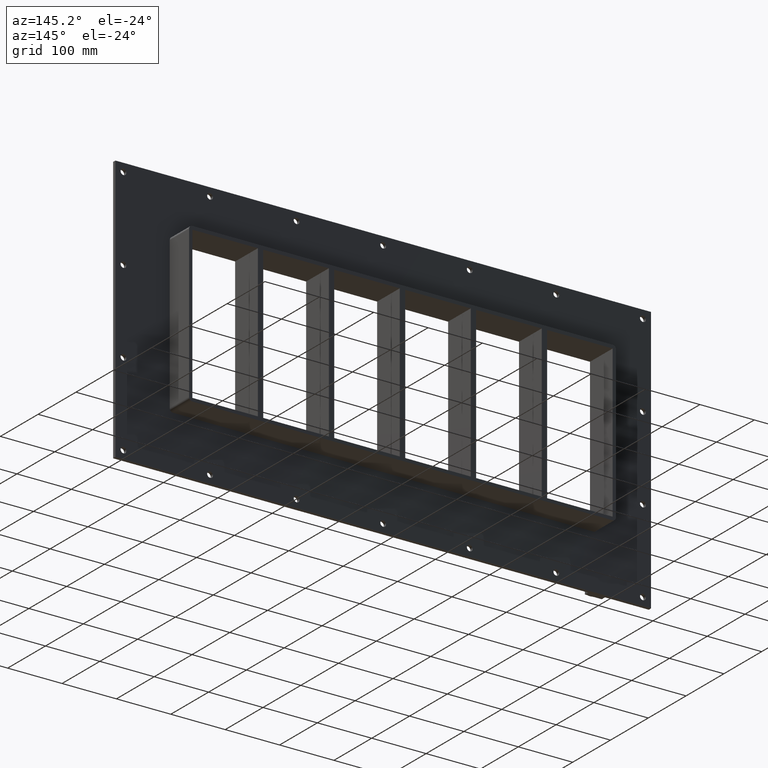
[diagram: clean part render]
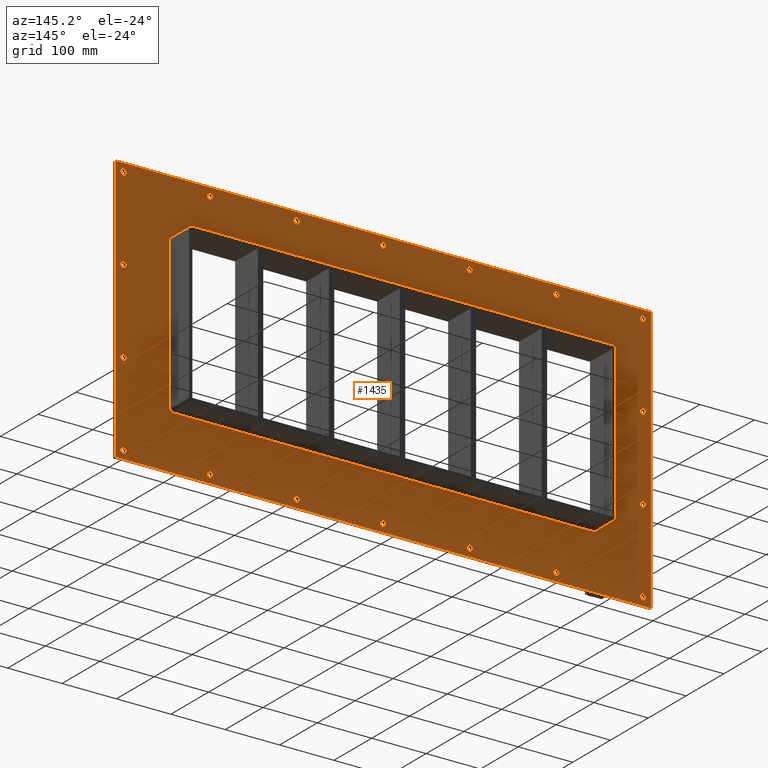
[diagram: same view with one face highlighted and labeled with its STEP entity id]
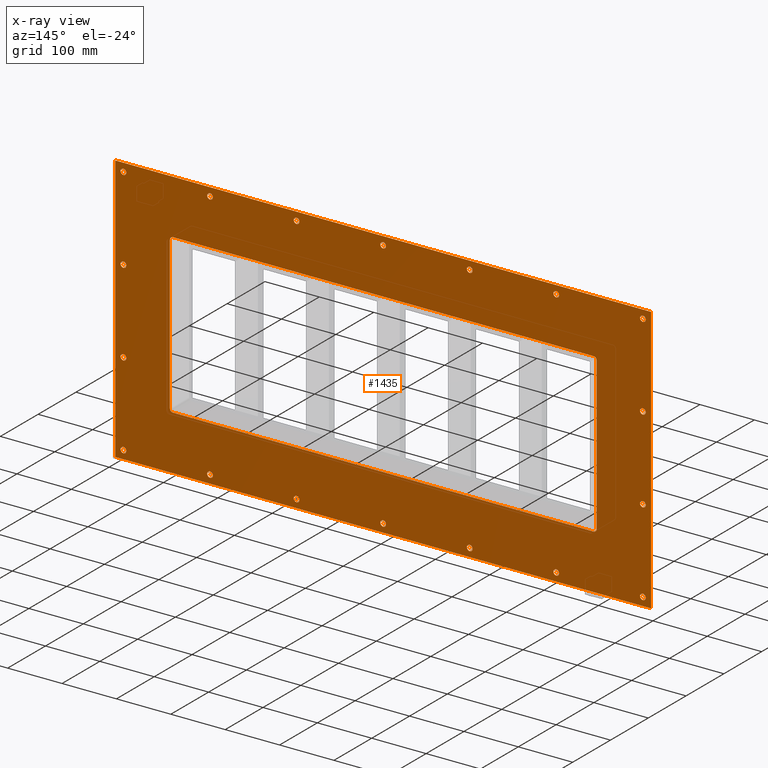
[diagram: x-ray of the same camera — body ghosted, the highlighted face saturated]
A machine part, auxiliary view. The second image highlights one B-rep face of the part: STEP entity #1435.
The next image is the same camera in x-ray: the body ghosted, the highlighted face saturated — about 0% of this face is hidden behind the body in this view.
In plain terms, the highlighted planar face has unit normal (0, 1, 0).
Its self-contained STEP definition (entity closure, byte-faithful):
#73=CARTESIAN_POINT('',(-482.75000000000034,5.999999999999943,-229.99999999999994));
#74=VERTEX_POINT('',#73);
#75=CARTESIAN_POINT('',(-477.50000000000034,5.999999999999943,-229.99999999999994));
#76=DIRECTION('',(0.0,-1.0,0.0));
#77=DIRECTION('',(1.0,0.0,0.0));
#78=AXIS2_PLACEMENT_3D('',#75,#76,#77);
#79=CIRCLE('',#78,5.25);
#80=EDGE_CURVE('',#74,#74,#79,.T.);
#101=CARTESIAN_POINT('',(472.44999999999959,5.999999999999943,-76.699999999999903));
#102=VERTEX_POINT('',#101);
#103=CARTESIAN_POINT('',(477.69999999999959,5.999999999999943,-76.699999999999903));
#104=DIRECTION('',(0.0,-1.0,0.0));
#105=DIRECTION('',(1.0,0.0,0.0));
#106=AXIS2_PLACEMENT_3D('',#103,#104,#105);
#107=CIRCLE('',#106,5.25);
#108=EDGE_CURVE('',#102,#102,#107,.T.);
#129=CARTESIAN_POINT('',(-482.75000000000034,5.999999999999943,-76.699999999999903));
#130=VERTEX_POINT('',#129);
#131=CARTESIAN_POINT('',(-477.50000000000034,5.999999999999943,-76.699999999999903));
#132=DIRECTION('',(0.0,-1.0,0.0));
#133=DIRECTION('',(1.0,0.0,0.0));
#134=AXIS2_PLACEMENT_3D('',#131,#132,#133);
#135=CIRCLE('',#134,5.25);
#136=EDGE_CURVE('',#130,#130,#135,.T.);
#157=CARTESIAN_POINT('',(472.44999999999959,5.999999999999943,76.600000000000094));
#158=VERTEX_POINT('',#157);
#159=CARTESIAN_POINT('',(477.69999999999959,5.999999999999943,76.600000000000094));
#160=DIRECTION('',(0.0,-1.0,0.0));
#161=DIRECTION('',(1.0,0.0,0.0));
#162=AXIS2_PLACEMENT_3D('',#159,#160,#161);
#163=CIRCLE('',#162,5.25);
#164=EDGE_CURVE('',#158,#158,#163,.T.);
#185=CARTESIAN_POINT('',(-482.75000000000034,5.999999999999943,76.600000000000094));
#186=VERTEX_POINT('',#185);
#187=CARTESIAN_POINT('',(-477.50000000000034,5.999999999999943,76.600000000000094));
#188=DIRECTION('',(0.0,-1.0,0.0));
#189=DIRECTION('',(1.0,0.0,0.0));
#190=AXIS2_PLACEMENT_3D('',#187,#188,#189);
#191=CIRCLE('',#190,5.25);
#192=EDGE_CURVE('',#186,#186,#191,.T.);
#213=CARTESIAN_POINT('',(-323.5500000000003,5.999999999999943,229.90000000000009));
#214=VERTEX_POINT('',#213);
#215=CARTESIAN_POINT('',(-318.30000000000035,5.999999999999943,229.90000000000009));
#216=DIRECTION('',(0.0,-1.0,0.0));
#217=DIRECTION('',(1.0,0.0,0.0));
#218=AXIS2_PLACEMENT_3D('',#215,#216,#217);
#219=CIRCLE('',#218,5.25);
#220=EDGE_CURVE('',#214,#214,#219,.T.);
#241=CARTESIAN_POINT('',(-323.5500000000003,5.999999999999943,-230.0));
#242=VERTEX_POINT('',#241);
#243=CARTESIAN_POINT('',(-318.30000000000035,5.999999999999943,-230.0));
#244=DIRECTION('',(0.0,-1.0,0.0));
#245=DIRECTION('',(1.0,0.0,0.0));
#246=AXIS2_PLACEMENT_3D('',#243,#244,#245);
#247=CIRCLE('',#246,5.25);
#248=EDGE_CURVE('',#242,#242,#247,.T.);
#269=CARTESIAN_POINT('',(-164.35000000000036,5.999999999999943,229.90000000000009));
#270=VERTEX_POINT('',#269);
#271=CARTESIAN_POINT('',(-159.10000000000036,5.999999999999943,229.90000000000009));
#272=DIRECTION('',(0.0,-1.0,0.0));
#273=DIRECTION('',(1.0,0.0,0.0));
#274=AXIS2_PLACEMENT_3D('',#271,#272,#273);
#275=CIRCLE('',#274,5.25);
#276=EDGE_CURVE('',#270,#270,#275,.T.);
#297=CARTESIAN_POINT('',(-164.35000000000036,5.999999999999943,-230.0));
#298=VERTEX_POINT('',#297);
#299=CARTESIAN_POINT('',(-159.10000000000036,5.999999999999943,-230.0));
#300=DIRECTION('',(0.0,-1.0,0.0));
#301=DIRECTION('',(1.0,0.0,0.0));
#302=AXIS2_PLACEMENT_3D('',#299,#300,#301);
#303=CIRCLE('',#302,5.25);
#304=EDGE_CURVE('',#298,#298,#303,.T.);
#325=CARTESIAN_POINT('',(-5.150000000000343,5.999999999999943,229.90000000000009));
#326=VERTEX_POINT('',#325);
#327=CARTESIAN_POINT('',(0.099999999999643,5.999999999999943,229.90000000000009));
#328=DIRECTION('',(0.0,-1.0,0.0));
#329=DIRECTION('',(1.0,0.0,0.0));
#330=AXIS2_PLACEMENT_3D('',#327,#328,#329);
#331=CIRCLE('',#330,5.25);
#332=EDGE_CURVE('',#326,#326,#331,.T.);
#353=CARTESIAN_POINT('',(-5.150000000000343,5.999999999999943,-230.0));
#354=VERTEX_POINT('',#353);
#355=CARTESIAN_POINT('',(0.099999999999643,5.999999999999943,-230.0));
#356=DIRECTION('',(0.0,-1.0,0.0));
#357=DIRECTION('',(1.0,0.0,0.0));
#358=AXIS2_PLACEMENT_3D('',#355,#356,#357);
#359=CIRCLE('',#358,5.25);
#360=EDGE_CURVE('',#354,#354,#359,.T.);
#381=CARTESIAN_POINT('',(154.04999999999961,5.999999999999943,229.90000000000009));
#382=VERTEX_POINT('',#381);
#383=CARTESIAN_POINT('',(159.29999999999959,5.999999999999943,229.90000000000009));
#384=DIRECTION('',(0.0,-1.0,0.0));
#385=DIRECTION('',(1.0,0.0,0.0));
#386=AXIS2_PLACEMENT_3D('',#383,#384,#385);
#387=CIRCLE('',#386,5.25);
#388=EDGE_CURVE('',#382,#382,#387,.T.);
#409=CARTESIAN_POINT('',(154.04999999999961,5.999999999999943,-230.0));
#410=VERTEX_POINT('',#409);
#411=CARTESIAN_POINT('',(159.29999999999959,5.999999999999943,-230.0));
#412=DIRECTION('',(0.0,-1.0,0.0));
#413=DIRECTION('',(1.0,0.0,0.0));
#414=AXIS2_PLACEMENT_3D('',#411,#412,#413);
#415=CIRCLE('',#414,5.25);
#416=EDGE_CURVE('',#410,#410,#415,.T.);
#437=CARTESIAN_POINT('',(313.2499999999996,5.999999999999943,229.90000000000009));
#438=VERTEX_POINT('',#437);
#439=CARTESIAN_POINT('',(318.4999999999996,5.999999999999943,229.90000000000009));
#440=DIRECTION('',(0.0,-1.0,0.0));
#441=DIRECTION('',(1.0,0.0,0.0));
#442=AXIS2_PLACEMENT_3D('',#439,#440,#441);
#443=CIRCLE('',#442,5.25);
#444=EDGE_CURVE('',#438,#438,#443,.T.);
#465=CARTESIAN_POINT('',(313.2499999999996,5.999999999999943,-230.0));
#466=VERTEX_POINT('',#465);
#467=CARTESIAN_POINT('',(318.4999999999996,5.999999999999943,-230.0));
#468=DIRECTION('',(0.0,-1.0,0.0));
#469=DIRECTION('',(1.0,0.0,0.0));
#470=AXIS2_PLACEMENT_3D('',#467,#468,#469);
#471=CIRCLE('',#470,5.25);
#472=EDGE_CURVE('',#466,#466,#471,.T.);
#493=CARTESIAN_POINT('',(472.44999999999959,5.999999999999943,-230.0));
#494=VERTEX_POINT('',#493);
#495=CARTESIAN_POINT('',(477.69999999999959,5.999999999999943,-230.0));
#496=DIRECTION('',(0.0,-1.0,0.0));
#497=DIRECTION('',(1.0,0.0,0.0));
#498=AXIS2_PLACEMENT_3D('',#495,#496,#497);
#499=CIRCLE('',#498,5.25);
#500=EDGE_CURVE('',#494,#494,#499,.T.);
#521=CARTESIAN_POINT('',(-482.75000000000034,5.999999999999943,229.90000000000009));
#522=VERTEX_POINT('',#521);
#523=CARTESIAN_POINT('',(-477.50000000000034,5.999999999999943,229.90000000000009));
#524=DIRECTION('',(0.0,-1.0,0.0));
#525=DIRECTION('',(1.0,0.0,0.0));
#526=AXIS2_PLACEMENT_3D('',#523,#524,#525);
#527=CIRCLE('',#526,5.25);
#528=EDGE_CURVE('',#522,#522,#527,.T.);
#549=CARTESIAN_POINT('',(472.44999999999959,5.999999999999943,229.90000000000009));
#550=VERTEX_POINT('',#549);
#551=CARTESIAN_POINT('',(477.69999999999959,5.999999999999943,229.90000000000009));
#552=DIRECTION('',(0.0,-1.0,0.0));
#553=DIRECTION('',(1.0,0.0,0.0));
#554=AXIS2_PLACEMENT_3D('',#551,#552,#553);
#555=CIRCLE('',#554,5.25);
#556=EDGE_CURVE('',#550,#550,#555,.T.);
#1272=CARTESIAN_POINT('',(0.0,6.000000000000001,0.0));
#1273=DIRECTION('',(0.0,1.0,0.0));
#1274=DIRECTION('',(0.0,0.0,1.0));
#1275=AXIS2_PLACEMENT_3D('',#1272,#1273,#1274);
#1276=PLANE('',#1275);
#1277=CARTESIAN_POINT('',(-492.50000000000023,6.000000000000001,245.0));
#1278=VERTEX_POINT('',#1277);
#1279=CARTESIAN_POINT('',(492.50000000000023,6.000000000000001,245.0));
#1280=VERTEX_POINT('',#1279);
#1281=CARTESIAN_POINT('',(-492.50000000000023,6.000000000000001,245.0));
#1282=DIRECTION('',(1.0,0.0,0.0));
#1283=VECTOR('',#1282,985.00000000000045);
#1284=LINE('',#1281,#1283);
#1285=EDGE_CURVE('',#1278,#1280,#1284,.T.);
#1286=ORIENTED_EDGE('',*,*,#1285,.T.);
#1287=CARTESIAN_POINT('',(492.50000000000023,6.000000000000001,-245.0));
#1288=VERTEX_POINT('',#1287);
#1289=CARTESIAN_POINT('',(492.50000000000023,6.000000000000001,245.0));
#1290=DIRECTION('',(0.0,0.0,-1.0));
#1291=VECTOR('',#1290,490.0);
#1292=LINE('',#1289,#1291);
#1293=EDGE_CURVE('',#1280,#1288,#1292,.T.);
#1294=ORIENTED_EDGE('',*,*,#1293,.T.);
#1295=CARTESIAN_POINT('',(-492.50000000000023,6.000000000000001,-245.0));
#1296=VERTEX_POINT('',#1295);
#1297=CARTESIAN_POINT('',(492.50000000000023,6.000000000000001,-245.0));
#1298=DIRECTION('',(-1.0,0.0,0.0));
#1299=VECTOR('',#1298,985.00000000000045);
#1300=LINE('',#1297,#1299);
#1301=EDGE_CURVE('',#1288,#1296,#1300,.T.);
#1302=ORIENTED_EDGE('',*,*,#1301,.T.);
#1303=CARTESIAN_POINT('',(-492.50000000000023,6.000000000000001,-245.0));
#1304=DIRECTION('',(0.0,0.0,1.0));
#1305=VECTOR('',#1304,490.0);
#1306=LINE('',#1303,#1305);
#1307=EDGE_CURVE('',#1296,#1278,#1306,.T.);
#1308=ORIENTED_EDGE('',*,*,#1307,.T.);
#1309=EDGE_LOOP('',(#1286,#1294,#1302,#1308));
#1310=FACE_OUTER_BOUND('',#1309,.T.);
#1311=ORIENTED_EDGE('',*,*,#80,.T.);
#1312=EDGE_LOOP('',(#1311));
#1313=FACE_BOUND('',#1312,.T.);
#1314=ORIENTED_EDGE('',*,*,#108,.T.);
#1315=EDGE_LOOP('',(#1314));
#1316=FACE_BOUND('',#1315,.T.);
#1317=ORIENTED_EDGE('',*,*,#136,.T.);
#1318=EDGE_LOOP('',(#1317));
#1319=FACE_BOUND('',#1318,.T.);
#1320=ORIENTED_EDGE('',*,*,#164,.T.);
#1321=EDGE_LOOP('',(#1320));
#1322=FACE_BOUND('',#1321,.T.);
#1323=ORIENTED_EDGE('',*,*,#192,.T.);
#1324=EDGE_LOOP('',(#1323));
#1325=FACE_BOUND('',#1324,.T.);
#1326=ORIENTED_EDGE('',*,*,#220,.T.);
#1327=EDGE_LOOP('',(#1326));
#1328=FACE_BOUND('',#1327,.T.);
#1329=ORIENTED_EDGE('',*,*,#248,.T.);
#1330=EDGE_LOOP('',(#1329));
#1331=FACE_BOUND('',#1330,.T.);
#1332=ORIENTED_EDGE('',*,*,#276,.T.);
#1333=EDGE_LOOP('',(#1332));
#1334=FACE_BOUND('',#1333,.T.);
#1335=ORIENTED_EDGE('',*,*,#304,.T.);
#1336=EDGE_LOOP('',(#1335));
#1337=FACE_BOUND('',#1336,.T.);
#1338=ORIENTED_EDGE('',*,*,#332,.T.);
#1339=EDGE_LOOP('',(#1338));
#1340=FACE_BOUND('',#1339,.T.);
#1341=ORIENTED_EDGE('',*,*,#360,.T.);
#1342=EDGE_LOOP('',(#1341));
#1343=FACE_BOUND('',#1342,.T.);
#1344=ORIENTED_EDGE('',*,*,#388,.T.);
#1345=EDGE_LOOP('',(#1344));
#1346=FACE_BOUND('',#1345,.T.);
#1347=ORIENTED_EDGE('',*,*,#416,.T.);
#1348=EDGE_LOOP('',(#1347));
#1349=FACE_BOUND('',#1348,.T.);
#1350=ORIENTED_EDGE('',*,*,#444,.T.);
#1351=EDGE_LOOP('',(#1350));
#1352=FACE_BOUND('',#1351,.T.);
#1353=ORIENTED_EDGE('',*,*,#472,.T.);
#1354=EDGE_LOOP('',(#1353));
#1355=FACE_BOUND('',#1354,.T.);
#1356=ORIENTED_EDGE('',*,*,#500,.T.);
#1357=EDGE_LOOP('',(#1356));
#1358=FACE_BOUND('',#1357,.T.);
#1359=ORIENTED_EDGE('',*,*,#528,.T.);
#1360=EDGE_LOOP('',(#1359));
#1361=FACE_BOUND('',#1360,.T.);
#1362=ORIENTED_EDGE('',*,*,#556,.T.);
#1363=EDGE_LOOP('',(#1362));
#1364=FACE_BOUND('',#1363,.T.);
#1365=CARTESIAN_POINT('',(-392.50000000000006,6.000000000000001,139.0));
#1366=VERTEX_POINT('',#1365);
#1367=CARTESIAN_POINT('',(-386.50000000000006,6.000000000000001,145.0));
#1368=VERTEX_POINT('',#1367);
#1369=CARTESIAN_POINT('',(-386.50000000000006,6.000000000000001,139.0));
#1370=DIRECTION('',(0.0,1.0,0.0));
#1371=DIRECTION('',(-0.707106781186543,0.0,0.707106781186552));
#1372=AXIS2_PLACEMENT_3D('',#1369,#1370,#1371);
#1373=CIRCLE('',#1372,6.000000000000001);
#1374=EDGE_CURVE('',#1366,#1368,#1373,.T.);
#1375=ORIENTED_EDGE('',*,*,#1374,.F.);
#1376=CARTESIAN_POINT('',(-392.50000000000006,6.000000000000001,-139.0));
#1377=VERTEX_POINT('',#1376);
#1378=CARTESIAN_POINT('',(-392.50000000000006,6.000000000000001,-139.0));
#1379=DIRECTION('',(0.0,0.0,1.0));
#1380=VECTOR('',#1379,278.0);
#1381=LINE('',#1378,#1380);
#1382=EDGE_CURVE('',#1377,#1366,#1381,.T.);
#1383=ORIENTED_EDGE('',*,*,#1382,.F.);
#1384=CARTESIAN_POINT('',(-386.50000000000006,6.000000000000001,-145.0));
#1385=VERTEX_POINT('',#1384);
#1386=CARTESIAN_POINT('',(-386.50000000000006,6.000000000000001,-139.0));
#1387=DIRECTION('',(0.0,1.0,0.0));
#1388=DIRECTION('',(-0.707106781186543,0.0,-0.707106781186552));
#1389=AXIS2_PLACEMENT_3D('',#1386,#1387,#1388);
#1390=CIRCLE('',#1389,6.000000000000001);
#1391=EDGE_CURVE('',#1385,#1377,#1390,.T.);
#1392=ORIENTED_EDGE('',*,*,#1391,.F.);
#1393=CARTESIAN_POINT('',(386.50000000000006,6.000000000000001,-145.0));
#1394=VERTEX_POINT('',#1393);
#1395=CARTESIAN_POINT('',(386.50000000000006,6.000000000000001,-145.0));
#1396=DIRECTION('',(-1.0,0.0,0.0));
#1397=VECTOR('',#1396,773.0);
#1398=LINE('',#1395,#1397);
#1399=EDGE_CURVE('',#1394,#1385,#1398,.T.);
#1400=ORIENTED_EDGE('',*,*,#1399,.F.);
#1401=CARTESIAN_POINT('',(392.50000000000006,6.000000000000001,-139.0));
#1402=VERTEX_POINT('',#1401);
#1403=CARTESIAN_POINT('',(386.50000000000006,6.000000000000001,-139.0));
#1404=DIRECTION('',(0.0,1.0,0.0));
#1405=DIRECTION('',(0.707106781186543,0.0,-0.707106781186552));
#1406=AXIS2_PLACEMENT_3D('',#1403,#1404,#1405);
#1407=CIRCLE('',#1406,6.000000000000001);
#1408=EDGE_CURVE('',#1402,#1394,#1407,.T.);
#1409=ORIENTED_EDGE('',*,*,#1408,.F.);
#1410=CARTESIAN_POINT('',(392.50000000000006,6.000000000000001,139.0));
#1411=VERTEX_POINT('',#1410);
#1412=CARTESIAN_POINT('',(392.50000000000006,6.000000000000001,139.0));
#1413=DIRECTION('',(0.0,0.0,-1.0));
#1414=VECTOR('',#1413,278.0);
#1415=LINE('',#1412,#1414);
#1416=EDGE_CURVE('',#1411,#1402,#1415,.T.);
#1417=ORIENTED_EDGE('',*,*,#1416,.F.);
#1418=CARTESIAN_POINT('',(386.50000000000006,6.000000000000001,145.0));
#1419=VERTEX_POINT('',#1418);
#1420=CARTESIAN_POINT('',(386.50000000000006,6.000000000000001,139.0));
#1421=DIRECTION('',(0.0,1.0,0.0));
#1422=DIRECTION('',(0.707106781186545,0.0,0.70710678118655));
#1423=AXIS2_PLACEMENT_3D('',#1420,#1421,#1422);
#1424=CIRCLE('',#1423,6.000000000000001);
#1425=EDGE_CURVE('',#1419,#1411,#1424,.T.);
#1426=ORIENTED_EDGE('',*,*,#1425,.F.);
#1427=CARTESIAN_POINT('',(-386.50000000000006,6.000000000000001,145.0));
#1428=DIRECTION('',(1.0,0.0,0.0));
#1429=VECTOR('',#1428,773.0);
#1430=LINE('',#1427,#1429);
#1431=EDGE_CURVE('',#1368,#1419,#1430,.T.);
#1432=ORIENTED_EDGE('',*,*,#1431,.F.);
#1433=EDGE_LOOP('',(#1375,#1383,#1392,#1400,#1409,#1417,#1426,#1432));
#1434=FACE_BOUND('',#1433,.T.);
#1435=ADVANCED_FACE('',(#1310,#1313,#1316,#1319,#1322,#1325,#1328,#1331,#1334,#1337,#1340,#1343,#1346,#1349,#1352,#1355,#1358,#1361,#1364,#1434),#1276,.T.);